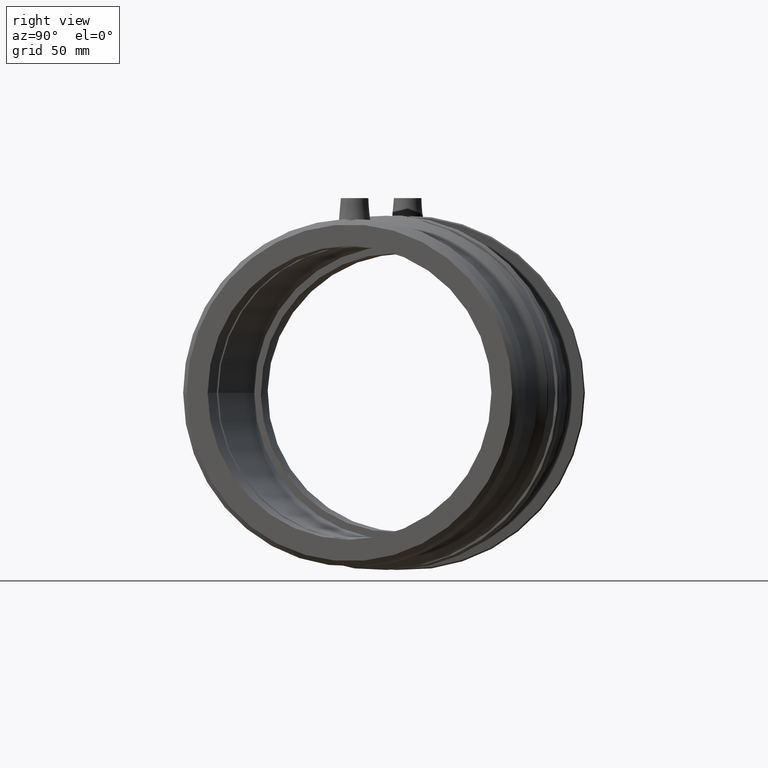
[diagram: clean part render]
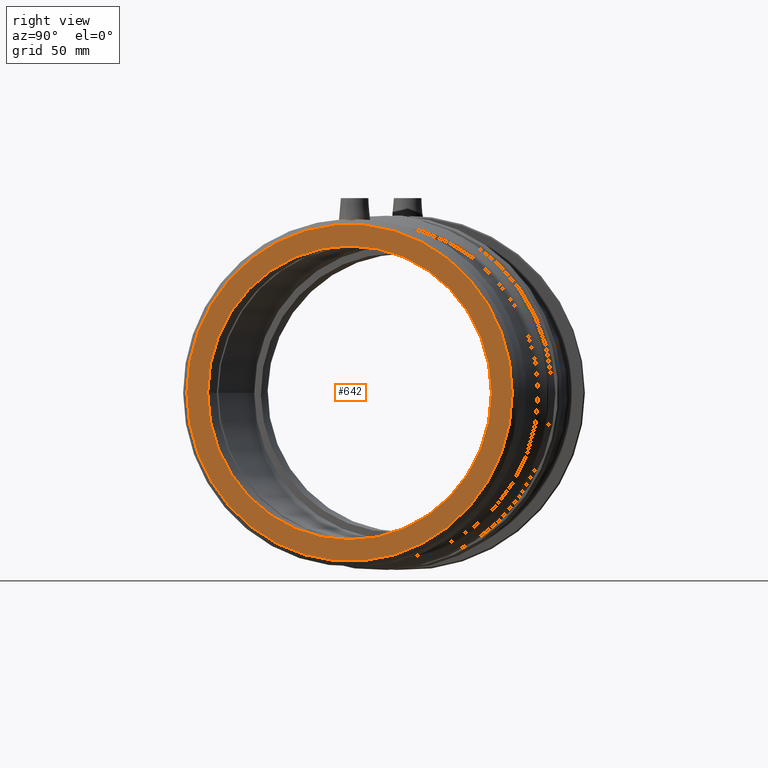
[diagram: same view with one face highlighted and labeled with its STEP entity id]
A machine part, right view. The second image highlights one B-rep face of the part: STEP entity #642.
In plain terms, the highlighted planar face has unit normal (0.9659, -0.2588, 0).
Its self-contained STEP definition (entity closure, byte-faithful):
#59=PLANE('',#728);
#92=FACE_BOUND('',#228,.T.);
#146=FACE_OUTER_BOUND('',#227,.T.);
#227=EDGE_LOOP('',(#521));
#228=EDGE_LOOP('',(#522));
#302=CIRCLE('',#705,80.);
#315=CIRCLE('',#729,91.7329);
#361=VERTEX_POINT('',#1395);
#373=VERTEX_POINT('',#1431);
#422=EDGE_CURVE('',#361,#361,#302,.T.);
#435=EDGE_CURVE('',#373,#373,#315,.T.);
#521=ORIENTED_EDGE('',*,*,#435,.F.);
#522=ORIENTED_EDGE('',*,*,#422,.T.);
#642=ADVANCED_FACE('',(#146,#92),#59,.T.);
#705=AXIS2_PLACEMENT_3D('',#1396,#845,#846);
#728=AXIS2_PLACEMENT_3D('',#1430,#891,#892);
#729=AXIS2_PLACEMENT_3D('',#1432,#893,#894);
#845=DIRECTION('center_axis',(-0.965925826289068,0.258819045102521,0.));
#846=DIRECTION('ref_axis',(0.,0.,-1.));
#891=DIRECTION('center_axis',(0.965925826289068,-0.258819045102521,0.));
#892=DIRECTION('ref_axis',(0.,0.,1.));
#893=DIRECTION('center_axis',(-0.965925826289068,0.258819045102521,0.));
#894=DIRECTION('ref_axis',(0.,0.,-1.));
#1395=CARTESIAN_POINT('',(97.4717956272605,-108.939583355943,0.));
#1396=CARTESIAN_POINT('Origin',(118.177319235462,-31.6655172528171,0.));
#1430=CARTESIAN_POINT('Origin',(94.4350976529772,-120.27269448321,0.));
#1431=CARTESIAN_POINT('',(94.4350976529772,-120.27269448321,0.));
#1432=CARTESIAN_POINT('Origin',(118.177319235462,-31.6655172528171,0.));